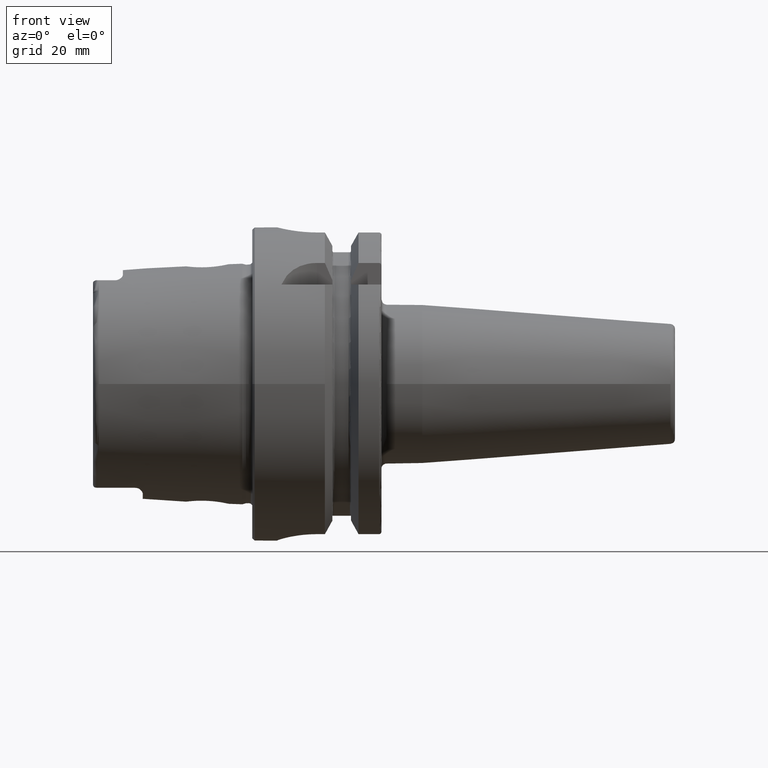
[diagram: clean part render]
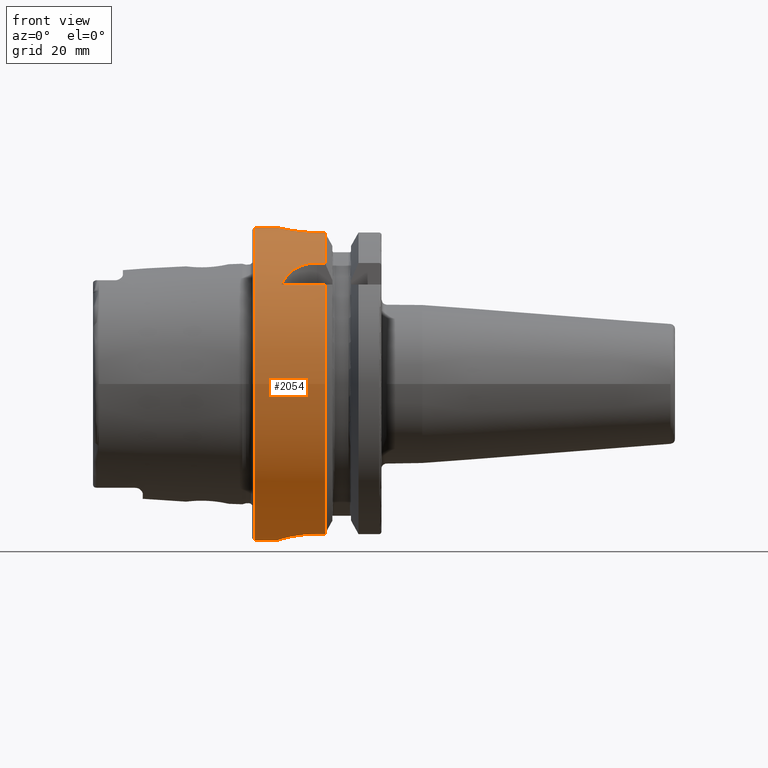
[diagram: same view with one face highlighted and labeled with its STEP entity id]
A machine part, front view. The second image highlights one B-rep face of the part: STEP entity #2054.
In plain terms, the highlighted cylindrical surface (bore or boss wall) has radius 31.5 mm, axis along (1, 0, 0).
Its self-contained STEP definition (entity closure, byte-faithful):
#57=B_SPLINE_CURVE_WITH_KNOTS('',3,(#3792,#3793,#3794,#3795,#3796,#3797,
#3798,#3799,#3800,#3801,#3802,#3803,#3804,#3805,#3806,#3807,#3808,#3809,
#3810,#3811,#3812,#3813,#3814,#3815,#3816,#3817),.UNSPECIFIED.,.F.,.F.,
(4,2,2,2,2,2,2,2,2,2,2,2,4),(0.,0.188688694287612,0.377377388575223,0.56606194688798,
0.754746505200737,0.943431063513494,1.13211562182625,1.32080431611386,1.50949301040147,
1.69818170468909,1.8868703989767,2.07555495728945,2.26423951560221),
 .UNSPECIFIED.);
#58=B_SPLINE_CURVE_WITH_KNOTS('',3,(#3818,#3819,#3820,#3821,#3822,#3823,
#3824,#3825,#3826,#3827),.UNSPECIFIED.,.F.,.F.,(4,2,2,2,4),(2.26423951560221,
2.45292407391497,2.64160863222773,2.83029732651534,3.01898602080295),
 .UNSPECIFIED.);
#61=B_SPLINE_CURVE_WITH_KNOTS('',3,(#3884,#3885,#3886,#3887,#3888,#3889,
#3890,#3891,#3892,#3893,#3894,#3895),.UNSPECIFIED.,.F.,.F.,(4,2,2,2,2,4),
(1.1085154204615,1.31979218709236,1.52798350480179,1.73617482251122,1.90421770126337,
2.07226058001552),.UNSPECIFIED.);
#71=B_SPLINE_CURVE_WITH_KNOTS('',3,(#4064,#4065,#4066,#4067,#4068,#4069,
#4070,#4071,#4072,#4073),.UNSPECIFIED.,.F.,.F.,(4,2,2,2,4),(1.20927420824097,
1.5131742975437,1.81707438684643,2.12000449915965,2.42293461147287),
 .UNSPECIFIED.);
#74=B_SPLINE_CURVE_WITH_KNOTS('',3,(#4099,#4100,#4101,#4102,#4103,#4104,
#4105,#4106,#4107,#4108),.UNSPECIFIED.,.F.,.F.,(4,2,2,2,4),(0.,0.30293011231322,
0.605860224626439,0.90976031392917,1.2136604032319),.UNSPECIFIED.);
#84=B_SPLINE_CURVE_WITH_KNOTS('',3,(#4254,#4255,#4256,#4257,#4258,#4259,
#4260,#4261,#4262,#4263,#4264,#4265,#4266,#4267,#4268,#4269,#4270,#4271),
 .UNSPECIFIED.,.F.,.F.,(4,2,2,2,2,2,2,2,4),(0.,0.302805879979318,0.605611759958635,
0.908372461246501,1.21113316253437,1.51389386382223,1.8166545651101,2.11946044508942,
2.42226632506874),.UNSPECIFIED.);
#97=FACE_BOUND('',#419,.T.);
#201=CYLINDRICAL_SURFACE('',#2283,31.5);
#291=FACE_OUTER_BOUND('',#418,.T.);
#418=EDGE_LOOP('',(#1756,#1757,#1758,#1759,#1760,#1761,#1762,#1763,#1764,
#1765,#1766,#1767,#1768,#1769,#1770,#1771,#1772,#1773));
#419=EDGE_LOOP('',(#1774,#1775));
#515=LINE('',#3859,#623);
#520=LINE('',#3904,#628);
#538=LINE('',#4081,#646);
#539=LINE('',#4085,#647);
#551=LINE('',#4248,#659);
#554=LINE('',#4278,#662);
#556=LINE('',#4284,#664);
#623=VECTOR('',#2624,10.);
#628=VECTOR('',#2635,10.);
#646=VECTOR('',#2699,10.);
#647=VECTOR('',#2702,10.);
#659=VECTOR('',#2780,10.);
#662=VECTOR('',#2791,10.);
#664=VECTOR('',#2799,31.5);
#735=CIRCLE('',#2226,31.5);
#736=CIRCLE('',#2227,31.5);
#744=CIRCLE('',#2247,31.5);
#745=CIRCLE('',#2249,31.5);
#759=CIRCLE('',#2284,31.5);
#760=CIRCLE('',#2285,31.5);
#908=VERTEX_POINT('',#3789);
#909=VERTEX_POINT('',#3791);
#917=VERTEX_POINT('',#3856);
#918=VERTEX_POINT('',#3858);
#922=VERTEX_POINT('',#3883);
#924=VERTEX_POINT('',#3900);
#929=VERTEX_POINT('',#3916);
#930=VERTEX_POINT('',#3918);
#955=VERTEX_POINT('',#4062);
#956=VERTEX_POINT('',#4063);
#957=VERTEX_POINT('',#4083);
#958=VERTEX_POINT('',#4084);
#961=VERTEX_POINT('',#4098);
#962=VERTEX_POINT('',#4113);
#978=VERTEX_POINT('',#4245);
#979=VERTEX_POINT('',#4247);
#980=VERTEX_POINT('',#4253);
#982=VERTEX_POINT('',#4283);
#1147=EDGE_CURVE('',#909,#908,#57,.T.);
#1148=EDGE_CURVE('',#908,#909,#58,.T.);
#1157=EDGE_CURVE('',#918,#917,#515,.T.);
#1163=EDGE_CURVE('',#917,#922,#61,.T.);
#1167=EDGE_CURVE('',#922,#924,#520,.T.);
#1173=EDGE_CURVE('',#918,#929,#735,.T.);
#1174=EDGE_CURVE('',#929,#930,#736,.T.);
#1208=EDGE_CURVE('',#955,#956,#71,.T.);
#1212=EDGE_CURVE('',#956,#930,#538,.T.);
#1213=EDGE_CURVE('',#957,#958,#539,.T.);
#1218=EDGE_CURVE('',#958,#961,#74,.T.);
#1220=EDGE_CURVE('',#961,#955,#744,.T.);
#1221=EDGE_CURVE('',#957,#962,#745,.T.);
#1253=EDGE_CURVE('',#979,#978,#551,.T.);
#1255=EDGE_CURVE('',#978,#980,#84,.T.);
#1259=EDGE_CURVE('',#980,#962,#554,.T.);
#1261=EDGE_CURVE('',#979,#924,#759,.T.);
#1262=EDGE_CURVE('',#929,#982,#556,.T.);
#1263=EDGE_CURVE('',#982,#982,#760,.T.);
#1756=ORIENTED_EDGE('',*,*,#1167,.T.);
#1757=ORIENTED_EDGE('',*,*,#1261,.F.);
#1758=ORIENTED_EDGE('',*,*,#1253,.T.);
#1759=ORIENTED_EDGE('',*,*,#1255,.T.);
#1760=ORIENTED_EDGE('',*,*,#1259,.T.);
#1761=ORIENTED_EDGE('',*,*,#1221,.F.);
#1762=ORIENTED_EDGE('',*,*,#1213,.T.);
#1763=ORIENTED_EDGE('',*,*,#1218,.T.);
#1764=ORIENTED_EDGE('',*,*,#1220,.T.);
#1765=ORIENTED_EDGE('',*,*,#1208,.T.);
#1766=ORIENTED_EDGE('',*,*,#1212,.T.);
#1767=ORIENTED_EDGE('',*,*,#1174,.F.);
#1768=ORIENTED_EDGE('',*,*,#1262,.T.);
#1769=ORIENTED_EDGE('',*,*,#1263,.T.);
#1770=ORIENTED_EDGE('',*,*,#1262,.F.);
#1771=ORIENTED_EDGE('',*,*,#1173,.F.);
#1772=ORIENTED_EDGE('',*,*,#1157,.T.);
#1773=ORIENTED_EDGE('',*,*,#1163,.T.);
#1774=ORIENTED_EDGE('',*,*,#1147,.T.);
#1775=ORIENTED_EDGE('',*,*,#1148,.T.);
#2054=ADVANCED_FACE('',(#291,#97),#201,.T.);
#2226=AXIS2_PLACEMENT_3D('',#3917,#2648,#2649);
#2227=AXIS2_PLACEMENT_3D('',#3919,#2650,#2651);
#2247=AXIS2_PLACEMENT_3D('',#4111,#2710,#2711);
#2249=AXIS2_PLACEMENT_3D('',#4114,#2714,#2715);
#2283=AXIS2_PLACEMENT_3D('',#4281,#2795,#2796);
#2284=AXIS2_PLACEMENT_3D('',#4282,#2797,#2798);
#2285=AXIS2_PLACEMENT_3D('',#4285,#2800,#2801);
#2624=DIRECTION('',(-1.,0.,0.));
#2635=DIRECTION('',(1.,0.,0.));
#2648=DIRECTION('center_axis',(1.,0.,0.));
#2649=DIRECTION('ref_axis',(0.,0.,-1.));
#2650=DIRECTION('center_axis',(1.,0.,0.));
#2651=DIRECTION('ref_axis',(0.,0.,-1.));
#2699=DIRECTION('',(1.,0.,0.));
#2702=DIRECTION('',(-1.,0.,0.));
#2710=DIRECTION('center_axis',(-1.,0.,0.));
#2711=DIRECTION('ref_axis',(0.,1.,0.));
#2714=DIRECTION('center_axis',(1.,0.,0.));
#2715=DIRECTION('ref_axis',(0.,0.,-1.));
#2780=DIRECTION('',(-1.,0.,0.));
#2791=DIRECTION('',(1.,0.,0.));
#2795=DIRECTION('center_axis',(1.,0.,0.));
#2796=DIRECTION('ref_axis',(0.,1.,0.));
#2797=DIRECTION('center_axis',(1.,0.,0.));
#2798=DIRECTION('ref_axis',(0.,0.,-1.));
#2799=DIRECTION('',(-1.,0.,0.));
#2800=DIRECTION('center_axis',(1.,0.,0.));
#2801=DIRECTION('ref_axis',(0.,0.,-1.));
#3789=CARTESIAN_POINT('',(12.,31.5,-6.12323399573677E-16));
#3791=CARTESIAN_POINT('',(7.,31.100643080168,5.));
#3792=CARTESIAN_POINT('Ctrl Pts',(7.,31.100643080168,5.));
#3793=CARTESIAN_POINT('Ctrl Pts',(6.37103768570796,31.100643080168,5.));
#3794=CARTESIAN_POINT('Ctrl Pts',(5.70089281579202,31.1216953112949,4.87408354368814));
#3795=CARTESIAN_POINT('Ctrl Pts',(4.46931934300962,31.1973810209855,4.36348784122736));
#3796=CARTESIAN_POINT('Ctrl Pts',(3.90779781350673,31.2508828501623,3.97886562537221));
#3797=CARTESIAN_POINT('Ctrl Pts',(3.021144092268,31.3510329557602,3.09221190413348));
#3798=CARTESIAN_POINT('Ctrl Pts',(2.63651425348544,31.4042391414288,2.5306861925578));
#3799=CARTESIAN_POINT('Ctrl Pts',(2.12591301120586,31.4792463697936,1.29909839144709));
#3800=CARTESIAN_POINT('Ctrl Pts',(2.,31.5,0.62894852770919));
#3801=CARTESIAN_POINT('Ctrl Pts',(2.,31.5,-0.62894852770919));
#3802=CARTESIAN_POINT('Ctrl Pts',(2.12591301120586,31.4792463697936,-1.29909839144709));
#3803=CARTESIAN_POINT('Ctrl Pts',(2.63651425348544,31.4042391414288,-2.5306861925578));
#3804=CARTESIAN_POINT('Ctrl Pts',(3.021144092268,31.3510329557602,-3.09221190413348));
#3805=CARTESIAN_POINT('Ctrl Pts',(3.90779781350673,31.2508828501623,-3.97886562537221));
#3806=CARTESIAN_POINT('Ctrl Pts',(4.46931934300962,31.1973810209855,-4.36348784122736));
#3807=CARTESIAN_POINT('Ctrl Pts',(5.70089281579202,31.1216953112949,-4.87408354368814));
#3808=CARTESIAN_POINT('Ctrl Pts',(6.37103768570796,31.100643080168,-5.));
#3809=CARTESIAN_POINT('Ctrl Pts',(7.62896231429204,31.100643080168,-5.));
#3810=CARTESIAN_POINT('Ctrl Pts',(8.29910718420798,31.1216953112949,-4.87408354368814));
#3811=CARTESIAN_POINT('Ctrl Pts',(9.53068065699038,31.1973810209855,-4.36348784122736));
#3812=CARTESIAN_POINT('Ctrl Pts',(10.0922021864933,31.2508828501623,-3.97886562537221));
#3813=CARTESIAN_POINT('Ctrl Pts',(10.978855907732,31.3510329557602,-3.09221190413348));
#3814=CARTESIAN_POINT('Ctrl Pts',(11.3634857465146,31.4042391414288,-2.53068619255779));
#3815=CARTESIAN_POINT('Ctrl Pts',(11.8740869887941,31.4792463697936,-1.29909839144708));
#3816=CARTESIAN_POINT('Ctrl Pts',(12.,31.5,-0.62894852770919));
#3817=CARTESIAN_POINT('Ctrl Pts',(12.,31.5,-4.16333634234434E-16));
#3818=CARTESIAN_POINT('Ctrl Pts',(12.,31.5,-1.11022302462516E-15));
#3819=CARTESIAN_POINT('Ctrl Pts',(12.,31.5,0.628948527709188));
#3820=CARTESIAN_POINT('Ctrl Pts',(11.8740869887941,31.4792463697936,1.29909839144708));
#3821=CARTESIAN_POINT('Ctrl Pts',(11.3634857465146,31.4042391414288,2.53068619255779));
#3822=CARTESIAN_POINT('Ctrl Pts',(10.978855907732,31.3510329557602,3.09221190413348));
#3823=CARTESIAN_POINT('Ctrl Pts',(10.0922021864933,31.2508828501623,3.97886562537221));
#3824=CARTESIAN_POINT('Ctrl Pts',(9.53068065699038,31.1973810209855,4.36348784122736));
#3825=CARTESIAN_POINT('Ctrl Pts',(8.29910718420798,31.1216953112949,4.87408354368814));
#3826=CARTESIAN_POINT('Ctrl Pts',(7.62896231429204,31.100643080168,5.));
#3827=CARTESIAN_POINT('Ctrl Pts',(7.,31.100643080168,5.));
#3856=CARTESIAN_POINT('',(5.88828609634419,-24.3361870472759,20.));
#3858=CARTESIAN_POINT('',(14.6225009252407,-24.3361870472759,20.));
#3859=CARTESIAN_POINT('',(7.56125046262034,-24.3361870472759,20.));
#3883=CARTESIAN_POINT('',(13.,-20.,24.3361870472759));
#3884=CARTESIAN_POINT('Ctrl Pts',(5.88828609634419,-24.3361870472759,20.));
#3885=CARTESIAN_POINT('Ctrl Pts',(6.11069532820048,-23.9044753723342,20.5253108035937));
#3886=CARTESIAN_POINT('Ctrl Pts',(6.38325999044306,-23.4713523250807,21.0173865932788));
#3887=CARTESIAN_POINT('Ctrl Pts',(7.044898076458,-22.6317364276543,21.9186738868096));
#3888=CARTESIAN_POINT('Ctrl Pts',(7.46714468561685,-22.1861072682036,22.3682920878559));
#3889=CARTESIAN_POINT('Ctrl Pts',(8.46725531403812,-21.3767026700071,23.143042657319));
#3890=CARTESIAN_POINT('Ctrl Pts',(9.04646427720221,-21.0147449478223,23.4683362269255));
#3891=CARTESIAN_POINT('Ctrl Pts',(10.1145001432702,-20.5200081116516,23.9011603796022));
#3892=CARTESIAN_POINT('Ctrl Pts',(10.670823971716,-20.3234249831704,24.0673462447194));
#3893=CARTESIAN_POINT('Ctrl Pts',(11.8334528721306,-20.063121855676,24.2847667849476));
#3894=CARTESIAN_POINT('Ctrl Pts',(12.4398570708262,-20.,24.3361870472759));
#3895=CARTESIAN_POINT('Ctrl Pts',(13.,-20.,24.3361870472759));
#3900=CARTESIAN_POINT('',(14.6225009252407,-20.,24.3361870472759));
#3904=CARTESIAN_POINT('',(7.56125046262035,-20.,24.3361870472759));
#3916=CARTESIAN_POINT('',(14.6225009252407,-31.5,-3.85763741731416E-15));
#3917=CARTESIAN_POINT('Origin',(14.6225009252407,0.,0.));
#3918=CARTESIAN_POINT('',(14.6225009252407,-9.,-30.1869176962472));
#3919=CARTESIAN_POINT('Origin',(14.6225009252407,0.,0.));
#4062=CARTESIAN_POINT('',(5.,-0.999999999999999,-31.4841229828623));
#4063=CARTESIAN_POINT('',(13.,-9.,-30.1869176962472));
#4064=CARTESIAN_POINT('Ctrl Pts',(5.,-0.999999999999997,-31.4841229828623));
#4065=CARTESIAN_POINT('Ctrl Pts',(5.,-2.01248971281587,-31.4519642432536));
#4066=CARTESIAN_POINT('Ctrl Pts',(5.2037733306458,-3.08756640398171,-31.3640631381934));
#4067=CARTESIAN_POINT('Ctrl Pts',(6.02370102555041,-5.05836608044729,-31.1070804719497));
#4068=CARTESIAN_POINT('Ctrl Pts',(6.63955745341061,-5.95454409907418,-30.9405445582004));
#4069=CARTESIAN_POINT('Ctrl Pts',(8.05472493283182,-7.36715009628369,-30.6348764237341));
#4070=CARTESIAN_POINT('Ctrl Pts',(8.9496642215883,-7.98063403850821,-30.4752177477269));
#4071=CARTESIAN_POINT('Ctrl Pts',(10.9171740660538,-8.79719825889174,-30.2496070227108));
#4072=CARTESIAN_POINT('Ctrl Pts',(11.9902329589559,-9.,-30.1869176962472));
#4073=CARTESIAN_POINT('Ctrl Pts',(13.,-9.,-30.1869176962472));
#4081=CARTESIAN_POINT('',(7.56125046262035,-8.99999999999999,-30.1869176962472));
#4083=CARTESIAN_POINT('',(14.6225009252407,9.,-30.1869176962472));
#4084=CARTESIAN_POINT('',(13.,9.00000000000001,-30.1869176962472));
#4085=CARTESIAN_POINT('',(7.56125046262034,9.00000000000001,-30.1869176962472));
#4098=CARTESIAN_POINT('',(5.,1.,-31.4841229828623));
#4099=CARTESIAN_POINT('Ctrl Pts',(13.,9.00000000000001,-30.1869176962472));
#4100=CARTESIAN_POINT('Ctrl Pts',(11.9902329589559,9.00000000000001,-30.1869176962472));
#4101=CARTESIAN_POINT('Ctrl Pts',(10.9171740660538,8.79719825889175,-30.2496070227108));
#4102=CARTESIAN_POINT('Ctrl Pts',(8.9496642215883,7.98063403850822,-30.4752177477269));
#4103=CARTESIAN_POINT('Ctrl Pts',(8.05472493283182,7.3671500962837,-30.6348764237341));
#4104=CARTESIAN_POINT('Ctrl Pts',(6.63955745341061,5.95454409907419,-30.9405445582004));
#4105=CARTESIAN_POINT('Ctrl Pts',(6.02370102555041,5.0583660804473,-31.1070804719497));
#4106=CARTESIAN_POINT('Ctrl Pts',(5.2037733306458,3.08756640398172,-31.3640631381934));
#4107=CARTESIAN_POINT('Ctrl Pts',(5.,2.01248971281588,-31.4519642432536));
#4108=CARTESIAN_POINT('Ctrl Pts',(5.,1.00000000000001,-31.4841229828623));
#4111=CARTESIAN_POINT('Origin',(5.,0.,0.));
#4113=CARTESIAN_POINT('',(14.6225009252407,8.,30.4671954731642));
#4114=CARTESIAN_POINT('Origin',(14.6225009252407,0.,0.));
#4245=CARTESIAN_POINT('',(13.,-8.,30.4671954731642));
#4247=CARTESIAN_POINT('',(14.6225009252407,-8.,30.4671954731642));
#4248=CARTESIAN_POINT('',(7.56125046262034,-8.,30.4671954731642));
#4253=CARTESIAN_POINT('',(13.,8.,30.4671954731642));
#4254=CARTESIAN_POINT('Ctrl Pts',(13.,-8.,30.4671954731643));
#4255=CARTESIAN_POINT('Ctrl Pts',(11.9906470667356,-8.,30.4671954731643));
#4256=CARTESIAN_POINT('Ctrl Pts',(10.9172075930168,-7.79737202490167,30.5225803085525));
#4257=CARTESIAN_POINT('Ctrl Pts',(8.94758399331801,-6.97961067526075,30.719895002943));
#4258=CARTESIAN_POINT('Ctrl Pts',(8.05099322370438,-6.36470172268915,30.8586830127239));
#4259=CARTESIAN_POINT('Ctrl Pts',(6.63540388828045,-4.94911238726521,31.1170994373341));
#4260=CARTESIAN_POINT('Ctrl Pts',(6.02041263015313,-4.05247770930662,31.2539072689014));
#4261=CARTESIAN_POINT('Ctrl Pts',(5.20259114887399,-2.08269813865027,31.4466478906396));
#4262=CARTESIAN_POINT('Ctrl Pts',(5.,-1.00920233762622,31.5));
#4263=CARTESIAN_POINT('Ctrl Pts',(5.,1.00920233762622,31.5));
#4264=CARTESIAN_POINT('Ctrl Pts',(5.20259114887399,2.08269813865027,31.4466478906396));
#4265=CARTESIAN_POINT('Ctrl Pts',(6.02041263015313,4.05247770930662,31.2539072689014));
#4266=CARTESIAN_POINT('Ctrl Pts',(6.63540388828045,4.94911238726521,31.1170994373341));
#4267=CARTESIAN_POINT('Ctrl Pts',(8.05099322370439,6.36470172268915,30.8586830127239));
#4268=CARTESIAN_POINT('Ctrl Pts',(8.94758399331801,6.97961067526075,30.719895002943));
#4269=CARTESIAN_POINT('Ctrl Pts',(10.9172075930168,7.79737202490167,30.5225803085525));
#4270=CARTESIAN_POINT('Ctrl Pts',(11.9906470667356,8.,30.4671954731643));
#4271=CARTESIAN_POINT('Ctrl Pts',(13.,8.,30.4671954731643));
#4278=CARTESIAN_POINT('',(7.56125046262035,8.,30.4671954731642));
#4281=CARTESIAN_POINT('Origin',(7.56125046262034,0.,0.));
#4282=CARTESIAN_POINT('Origin',(14.6225009252407,0.,0.));
#4283=CARTESIAN_POINT('',(0.5,-31.5,-3.85763741731416E-15));
#4284=CARTESIAN_POINT('',(7.56125046262034,-31.5,-3.85763741731416E-15));
#4285=CARTESIAN_POINT('Origin',(0.5,0.,0.));